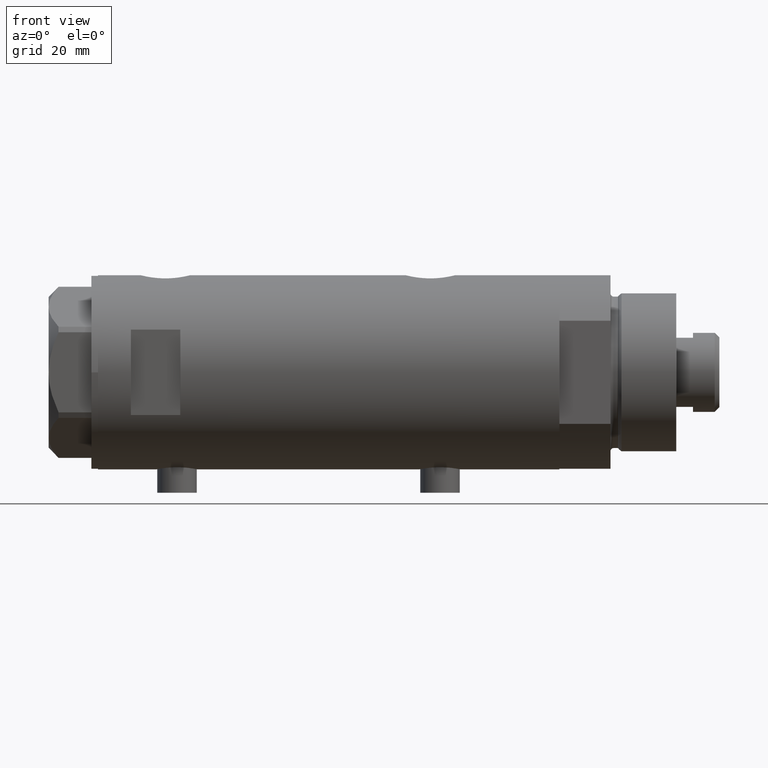
[diagram: clean part render]
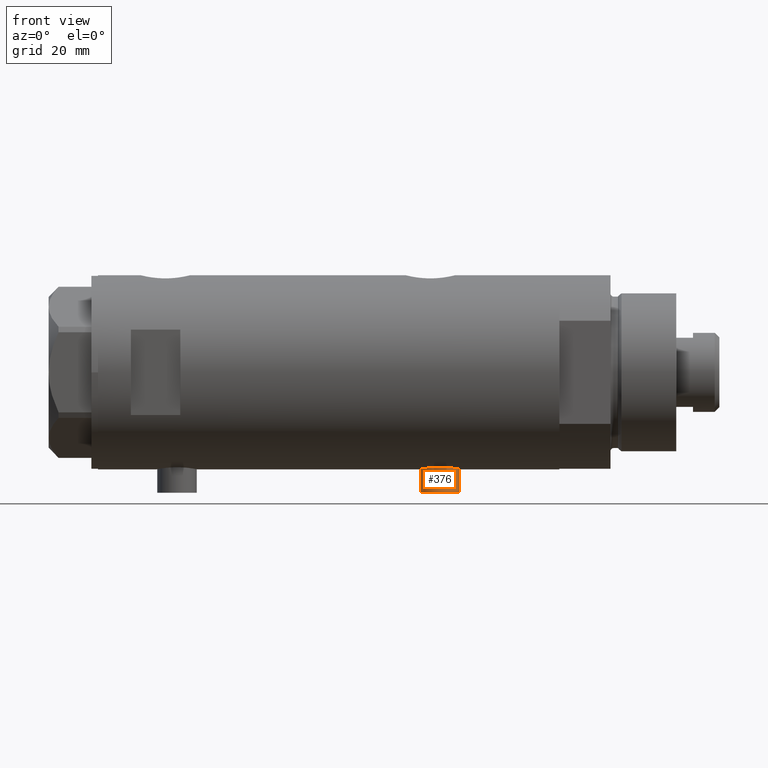
[diagram: same view with one face highlighted and labeled with its STEP entity id]
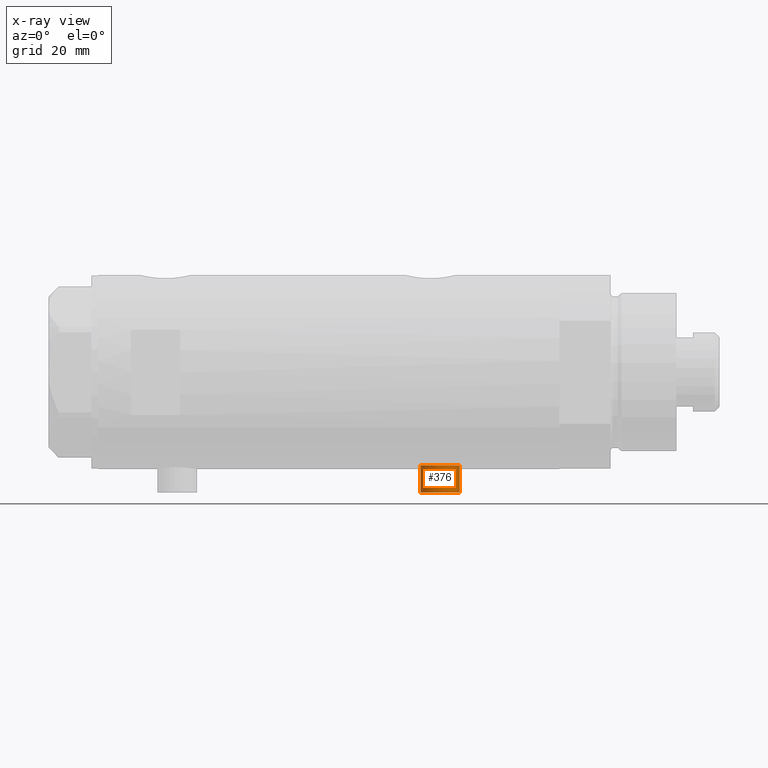
[diagram: x-ray of the same camera — body ghosted, the highlighted face saturated]
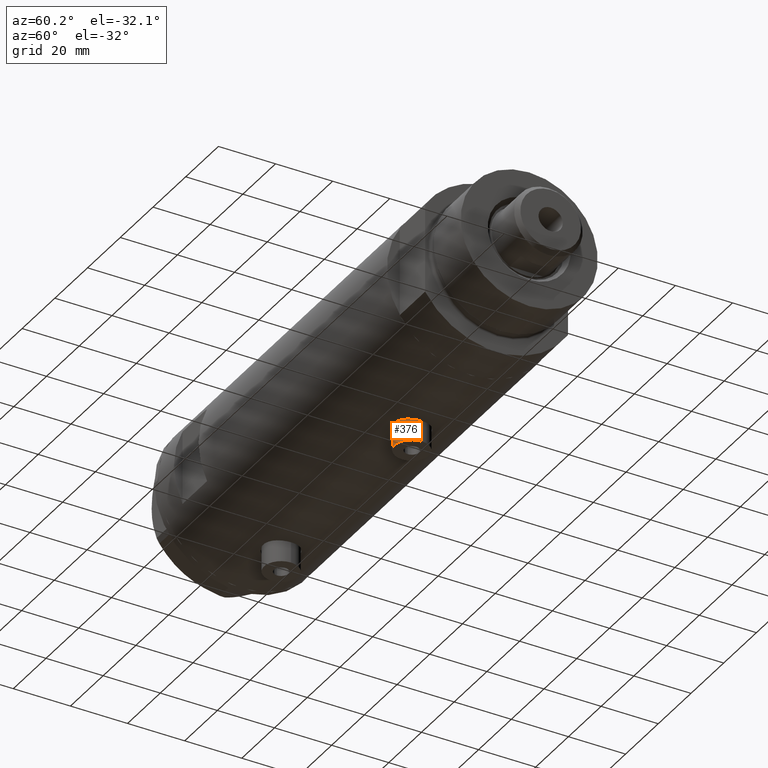
[diagram: same view with one face highlighted and labeled with its STEP entity id]
A machine part, front view. The second image highlights one B-rep face of the part: STEP entity #376.
The next image is the same camera in x-ray: the body ghosted, the highlighted face saturated — about 0% of this face is hidden behind the body in this view.
A second angle (auxiliary view) of the same face is appended — the face is thin or edge-on in the first view.
In plain terms, the highlighted cylindrical surface (edge-blend (fillet) strip) has radius 6 mm, axis along (0, 0, 1).
Its self-contained STEP definition (entity closure, byte-faithful):
#52 = CIRCLE ( 'NONE', #360, 6.000000000000001776 ) ;
#173 = CARTESIAN_POINT ( 'NONE',  ( -36.60000000000000142, 0.000000000000000000, -39.80000000000000426 ) ) ;
#241 = LINE ( 'NONE', #173, #346 ) ;
#346 = VECTOR ( 'NONE', #1671, 1000.000000000000000 ) ;
#360 = AXIS2_PLACEMENT_3D ( 'NONE', #4576, #1962, #1291 ) ;
#376 = ADVANCED_FACE ( 'NONE', ( #2717 ), #923, .T. ) ;
#650 = AXIS2_PLACEMENT_3D ( 'NONE', #4168, #4139, #2308 ) ;
#923 = CYLINDRICAL_SURFACE ( 'NONE', #2595, 6.000000000000005329 ) ;
#1067 = ORIENTED_EDGE ( 'NONE', *, *, #1973, .T. ) ;
#1291 = DIRECTION ( 'NONE',  ( 0.000000000000000000, 0.000000000000000000, 1.000000000000000000 ) ) ;
#1433 = EDGE_CURVE ( 'NONE', #2390, #3268, #4146, .T. ) ;
#1671 = DIRECTION ( 'NONE',  ( 1.000000000000000000, -0.000000000000000000, -0.000000000000000000 ) ) ;
#1700 = EDGE_CURVE ( 'NONE', #2197, #4026, #241, .T. ) ;
#1770 = CARTESIAN_POINT ( 'NONE',  ( -28.30000000000000071, 7.347880794884123680E-16, -27.79999999999999005 ) ) ;
#1884 = CARTESIAN_POINT ( 'NONE',  ( -36.60000000000000142, 0.000000000000000000, -39.80000000000000426 ) ) ;
#1962 = DIRECTION ( 'NONE',  ( -1.000000000000000000, 0.000000000000000000, 0.000000000000000000 ) ) ;
#1973 = EDGE_CURVE ( 'NONE', #4026, #3268, #4209, .T. ) ;
#2062 = ORIENTED_EDGE ( 'NONE', *, *, #1433, .F. ) ;
#2076 = CARTESIAN_POINT ( 'NONE',  ( -36.60000000000000142, 7.347880794884123680E-16, -27.79999999999999005 ) ) ;
#2118 = VECTOR ( 'NONE', #4120, 1000.000000000000000 ) ;
#2197 = VERTEX_POINT ( 'NONE', #1884 ) ;
#2308 = DIRECTION ( 'NONE',  ( 0.000000000000000000, 0.000000000000000000, 1.000000000000000000 ) ) ;
#2347 = CARTESIAN_POINT ( 'NONE',  ( -36.60000000000000142, 0.000000000000000000, -33.79999999999999716 ) ) ;
#2390 = VERTEX_POINT ( 'NONE', #2076 ) ;
#2595 = AXIS2_PLACEMENT_3D ( 'NONE', #2347, #3866, #3846 ) ;
#2670 = CARTESIAN_POINT ( 'NONE',  ( -36.60000000000000142, 7.347880794884121708E-16, -27.79999999999999361 ) ) ;
#2717 = FACE_OUTER_BOUND ( 'NONE', #4484, .T. ) ;
#3268 = VERTEX_POINT ( 'NONE', #1770 ) ;
#3479 = ORIENTED_EDGE ( 'NONE', *, *, #1700, .T. ) ;
#3541 = EDGE_CURVE ( 'NONE', #2197, #2390, #52, .T. ) ;
#3622 = CARTESIAN_POINT ( 'NONE',  ( -28.30000000000000071, 0.000000000000000000, -39.80000000000000426 ) ) ;
#3846 = DIRECTION ( 'NONE',  ( 0.000000000000000000, 0.000000000000000000, -1.000000000000000000 ) ) ;
#3866 = DIRECTION ( 'NONE',  ( 1.000000000000000000, -0.000000000000000000, -0.000000000000000000 ) ) ;
#4026 = VERTEX_POINT ( 'NONE', #3622 ) ;
#4108 = ORIENTED_EDGE ( 'NONE', *, *, #3541, .F. ) ;
#4120 = DIRECTION ( 'NONE',  ( 1.000000000000000000, -0.000000000000000000, -0.000000000000000000 ) ) ;
#4139 = DIRECTION ( 'NONE',  ( -1.000000000000000000, 0.000000000000000000, 0.000000000000000000 ) ) ;
#4146 = LINE ( 'NONE', #2670, #2118 ) ;
#4168 = CARTESIAN_POINT ( 'NONE',  ( -28.30000000000000071, 0.000000000000000000, -33.79999999999999716 ) ) ;
#4209 = CIRCLE ( 'NONE', #650, 6.000000000000001776 ) ;
#4484 = EDGE_LOOP ( 'NONE', ( #2062, #4108, #3479, #1067 ) ) ;
#4576 = CARTESIAN_POINT ( 'NONE',  ( -36.60000000000000142, 0.000000000000000000, -33.79999999999999716 ) ) ;